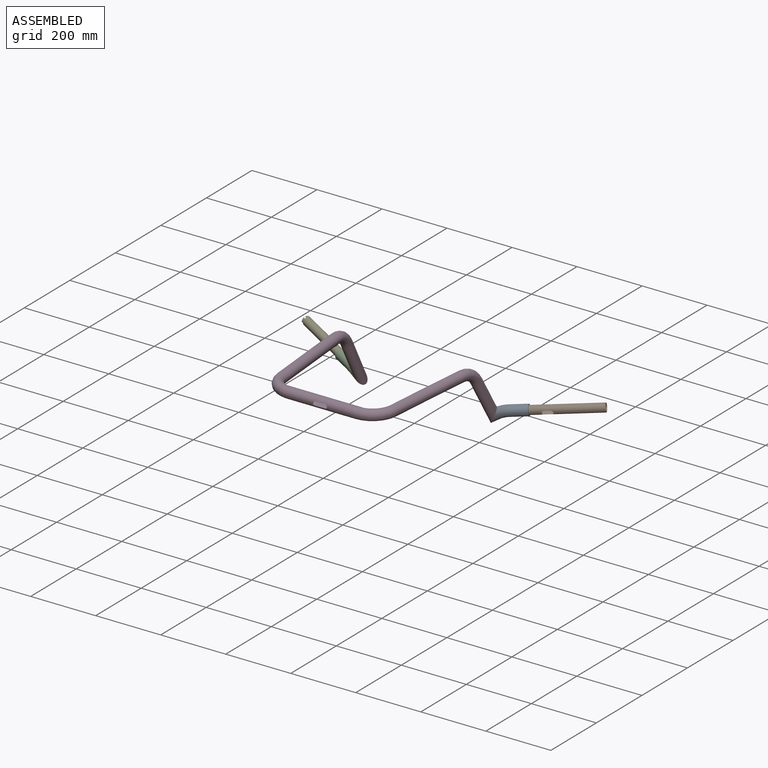
[diagram: assembled view]
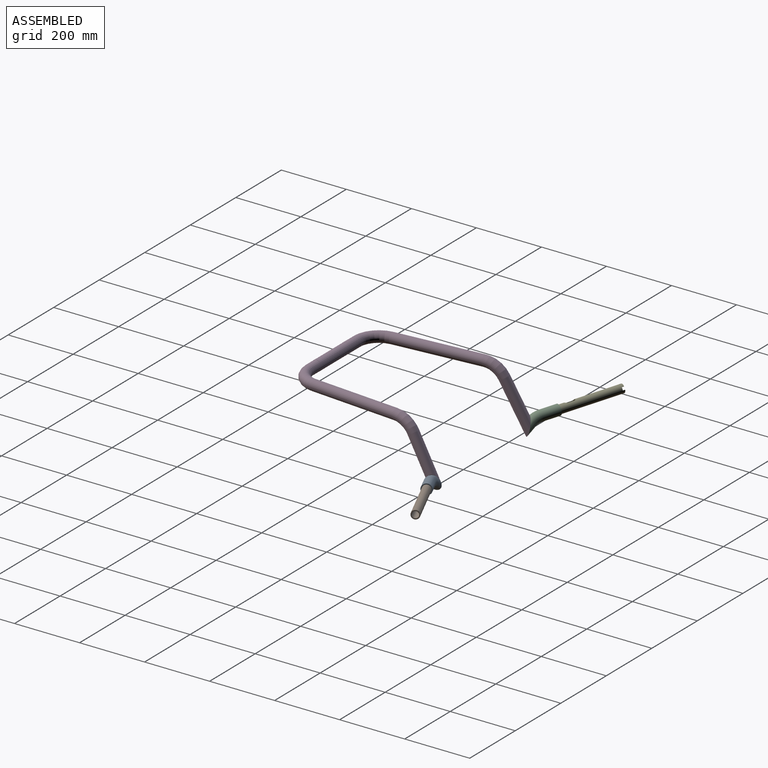
[diagram: assembled view, second angle]
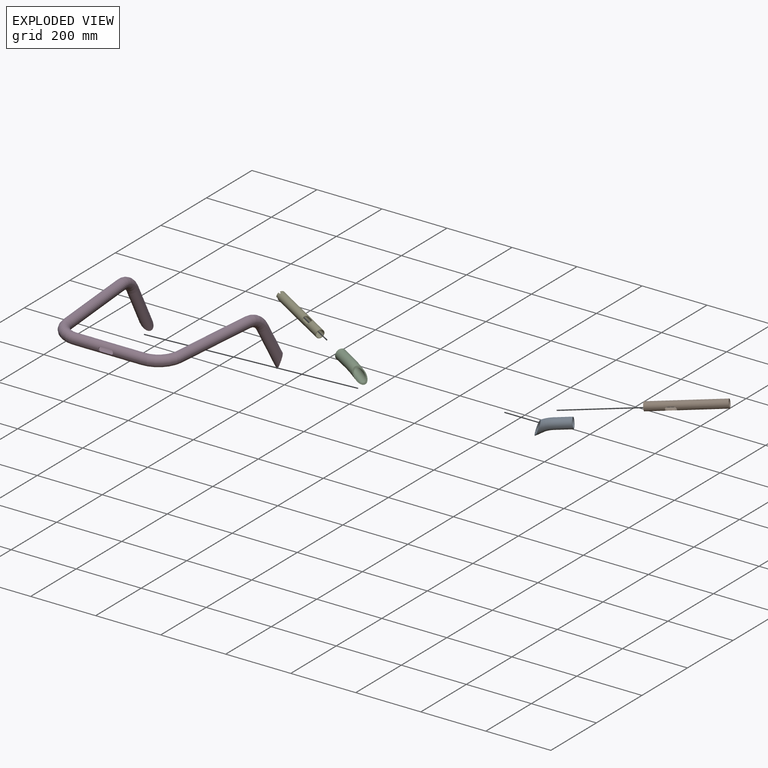
[diagram: exploded view]
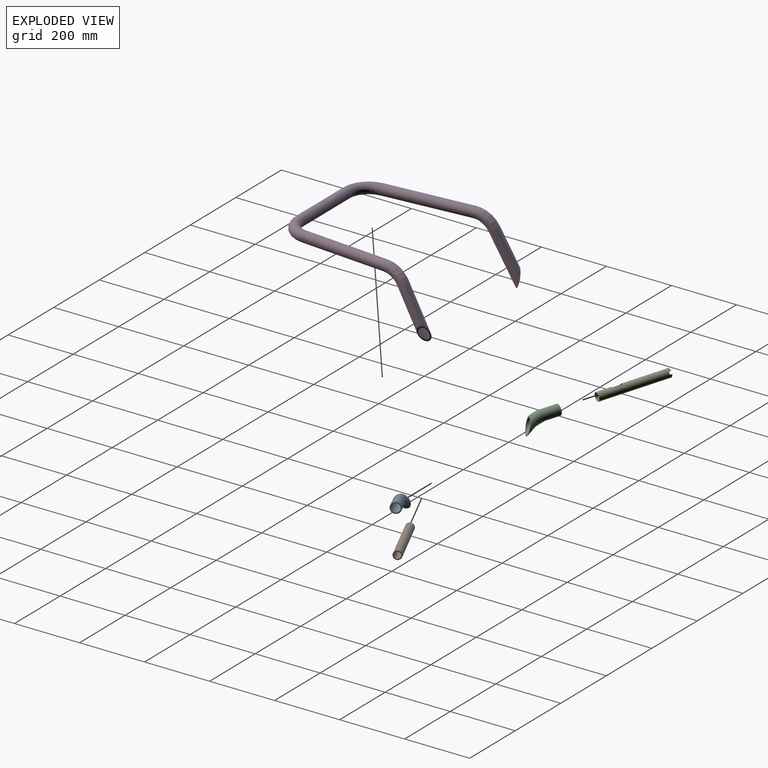
[diagram: exploded view, second angle]
ASSEMBLY  parts=5 mates=4
PART A: 8 faces, bbox 117x62.1x31.8 mm
  f0: cylinder r=12.7mm len=35.24mm, axis (0.87,-0.5,0), area 973.4mm2, adj f1,f7
  f1: torus R=66.67mm, axis (0,0,1), area 2675.9mm2, adj f0,f2,f7
  f2: cylinder r=12.7mm len=50.8mm, axis (1,0,0), area 4053.7mm2, adj f1,f3
  f3: plane 31.75x31.75mm, normal (1,0,0), area 285mm2, adj f2,f6
  f4: cylinder r=15.88mm len=40.77mm, axis (0.87,-0.5,0), area 1338.7mm2, adj f5,f7
  f5: torus R=66.67mm, axis (0,0,1), area 3234.5mm2, adj f4,f6,f7
  f6: cylinder r=15.88mm len=50.8mm, axis (1,0,0), area 5067.1mm2, adj f3,f5
  f7: plane 49.04x31.75mm, normal (-0.91,-0.42,0), area 482mm2, adj f0,f1,f4,f5
PART B: 8 faces, bbox 219.1x25.4x25.4 mm
  f0: cylinder r=9.53mm len=219.08mm, axis (-1,0,0), area 12590.6mm2, adj f2,f3,f4,f5,f6,f7
  f1: cylinder r=12.7mm len=219.08mm, axis (-1,0,0), area 16999.8mm2, adj f2,f3,f4,f5,f6,f7
  f2: plane 25.4x25.4mm, normal (1,0,0), area 221.7mm2, adj f0,f1
  f3: plane 25.4x25.4mm, normal (-1,0,0), area 221.7mm2, adj f0,f1
  f4: plane 15.88x4.65mm, normal (0,1,0), area 73.8mm2, adj f0,f1,f5,f7
  f5: cylinder r=7.94mm len=15.88mm, axis (0,0,-1), area 94.8mm2, adj f0,f1,f4,f6
  f6: plane 15.88x4.65mm, normal (0,-1,0), area 73.8mm2, adj f0,f1,f5,f7
  f7: cylinder r=7.94mm len=15.88mm, axis (0,0,-1), area 94.8mm2, adj f0,f1,f4,f6
PART C: same geometry as A
PART D: 38 faces, bbox 454.8x512.4x212 mm
  f0: plane 25.4x25.4mm, normal (-1,0,0), area 506.7mm2, adj f1
  f1: cylinder r=12.7mm len=111.13mm, axis (1,0,0), area 8314.1mm2, adj f0,f2,f3,f4,f5,f6
  f2: plane 25.4x25.4mm, normal (1,0,0), area 506.7mm2, adj f1
  f3: plane 31.75x3.55mm, normal (0,0,-1), area 112.7mm2, adj f1,f4,f6,f7
  f4: cylinder r=6.35mm len=12.7mm, axis (0,1,0), area 70.8mm2, adj f1,f3,f5,f7
  f5: plane 31.75x3.55mm, normal (0,0,1), area 112.7mm2, adj f1,f4,f6,f7
  f6: cylinder r=6.35mm len=12.7mm, axis (0,1,0), area 70.8mm2, adj f1,f3,f5,f7
  f7: cylinder r=15.88mm len=111.13mm, axis (1,0,0), area 10540mm2, adj f3,f4,f5,f6,f10,f24
  f8: cylinder r=16mm len=32mm, axis (-1,0,0), area 1755.7mm2, adj f9,f10
  f9: plane 32x32mm, normal (1,0,0), area 12.7mm2, adj f8,f21
  f10: plane 32x32mm, normal (-1,0,0), area 12.7mm2, adj f7,f8
  f11: cylinder r=12.7mm len=147.04mm, axis (0.04,0.5,-0.87), area 10929.9mm2, adj f12,f16
  f12: torus R=66.67mm, axis (-1,0.09,0), area 5571.5mm2, adj f11,f13
  f13: cylinder r=12.7mm len=270.45mm, axis (0.09,1,0), area 21486.4mm2, adj f12,f14
  f14: torus R=66.67mm, axis (0,0,1), area 7893mm2, adj f13,f15
  f15: cylinder r=12.7mm len=31.75mm, axis (1,0,0), area 2533.5mm2, adj f14,f22
  f16: plane 49.31x29.96mm, normal (0.76,0.59,-0.29), area 496.9mm2, adj f11,f17
  f17: cylinder r=15.88mm len=154.14mm, axis (0.04,0.5,-0.87), area 13662.4mm2, adj f16,f18
  f18: torus R=66.67mm, axis (-1,0.09,0), area 6964.4mm2, adj f17,f19
  f19: cylinder r=15.88mm len=271.01mm, axis (0.09,1,0), area 26858mm2, adj f18,f20
  f20: torus R=66.67mm, axis (0,0,1), area 9866.3mm2, adj f19,f21
  f21: cylinder r=15.88mm len=31.75mm, axis (1,0,0), area 3166.9mm2, adj f9,f20
  f22: plane 25.4x25.4mm, normal (1,0,0), area 506.7mm2, adj f15
  f23: cylinder r=16mm len=32mm, axis (-1,0,0), area 1755.7mm2, adj f24,f25
  f24: plane 32x32mm, normal (1,0,0), area 12.7mm2, adj f7,f23
  f25: plane 32x32mm, normal (-1,0,0), area 12.7mm2, adj f23,f36
  f26: cylinder r=12.7mm len=147.07mm, axis (0.04,-0.5,0.87), area 11009.2mm2, adj f27,f31
  f27: torus R=66.67mm, axis (1,0.09,0), area 5571.5mm2, adj f26,f28
  f28: cylinder r=12.7mm len=270.45mm, axis (0.09,-1,0), area 21486.4mm2, adj f27,f29
  f29: torus R=66.67mm, axis (0,0,1), area 7893mm2, adj f28,f30
  f30: cylinder r=12.7mm len=31.75mm, axis (1,0,0), area 2533.5mm2, adj f29,f37
  f31: plane 59.11x39.76mm, normal (-0.76,0.59,-0.29), area 496.9mm2, adj f26,f32
  f32: cylinder r=15.88mm len=154.18mm, axis (0.04,-0.5,0.87), area 13662.3mm2, adj f31,f33
  f33: torus R=66.67mm, axis (1,0.09,0), area 6964.4mm2, adj f32,f34
  f34: cylinder r=15.88mm len=271.01mm, axis (0.09,-1,0), area 26858mm2, adj f33,f35
  f35: torus R=66.67mm, axis (0,0,1), area 9866.3mm2, adj f34,f36
  f36: cylinder r=15.88mm len=31.75mm, axis (1,0,0), area 3166.9mm2, adj f25,f35
  f37: plane 25.4x25.4mm, normal (-1,0,0), area 506.7mm2, adj f30
PART E: 19 faces, bbox 209.6x25.4x25.4 mm
  f0: cylinder r=11.11mm len=209.55mm, axis (-1,0,0), area 13990mm2, adj f2,f3,f4,f5,f6,f7,f8,f9
  f1: cylinder r=12.7mm len=209.55mm, axis (-1,0,0), area 16093.9mm2, adj f2,f3,f4,f5,f6,f7,f8,f9
  f2: plane 9.76x8.29mm, normal (-1,0,0), area 19.3mm2, adj f0,f1,f12,f17
  f3: plane 9.76x8.29mm, normal (-1,0,0), area 19.3mm2, adj f0,f1,f11,f13
  f4: plane 23.96x8.48mm, normal (-1,0,0), area 45.7mm2, adj f0,f1,f14,f18
  f5: plane 25.4x25.4mm, normal (1,0,0), area 118.8mm2, adj f0,f1
  f6: plane 15.88x2.14mm, normal (0,1,0), area 33.9mm2, adj f0,f1,f7,f9
  f7: cylinder r=7.94mm len=15.88mm, axis (0,0,-1), area 45.7mm2, adj f0,f1,f6,f8
  f8: plane 15.88x2.14mm, normal (0,-1,0), area 33.9mm2, adj f0,f1,f7,f9
  f9: cylinder r=7.94mm len=15.88mm, axis (0,0,-1), area 45.7mm2, adj f0,f1,f6,f8
  f10: plane 4.45x1.81mm, normal (-1,0,0), area 7.1mm2, adj f0,f1,f11,f12
  f11: plane 6.73x1.62mm, normal (0,-1,0), area 10.9mm2, adj f0,f1,f3,f10
  f12: plane 6.73x1.62mm, normal (0,1,0), area 10.9mm2, adj f0,f1,f2,f10
  f13: plane 6.73x1.7mm, normal (0,0,-1), area 11.4mm2, adj f0,f1,f3,f15
  f14: plane 6.73x1.7mm, normal (0,0,1), area 11.4mm2, adj f0,f1,f4,f15
  f15: plane 8.43x2.42mm, normal (-1,0,0), area 13.7mm2, adj f0,f1,f13,f14
  f16: plane 8.43x2.42mm, normal (-1,0,0), area 13.7mm2, adj f0,f1,f17,f18
  f17: plane 6.73x1.7mm, normal (0,0,-1), area 11.4mm2, adj f0,f1,f2,f16
  f18: plane 6.73x1.7mm, normal (0,0,1), area 11.4mm2, adj f0,f1,f4,f16
PLACE A rot(axis=(-0.91,-0.29,0.3),68.1deg) t=(237.68,496.29,-194.62)mm
PLACE B rot(axis=(-0.18,0.86,-0.48),161.8deg) t=(465.22,578.62,-109.65)mm
PLACE C rot(axis=(-0.17,-0.84,0.51),161deg) t=(-237.68,496.29,-194.62)mm
PLACE D at identity fixed
PLACE E rot(axis=(0.69,-0.01,-0.73),37.9deg) t=(-453.94,572.94,-110.94)mm
MATE cylindrical B.f1 <-> A.f6  axis (-0.89,-0.45,-0.1) through (270.56,480.61,-131.89)mm
MATE cylindrical E.f1 <-> C.f2  axis (0.89,-0.45,-0.1) through (-267.74,479.19,-132.21)mm
MATE fastened C.f7 <-> D.f31  axis (0.76,-0.59,0.29) through (-192.45,460.33,-175.65)mm
MATE fastened D.f16 <-> A.f7  axis (0.76,0.59,-0.29) through (192.45,460.33,-175.65)mm
